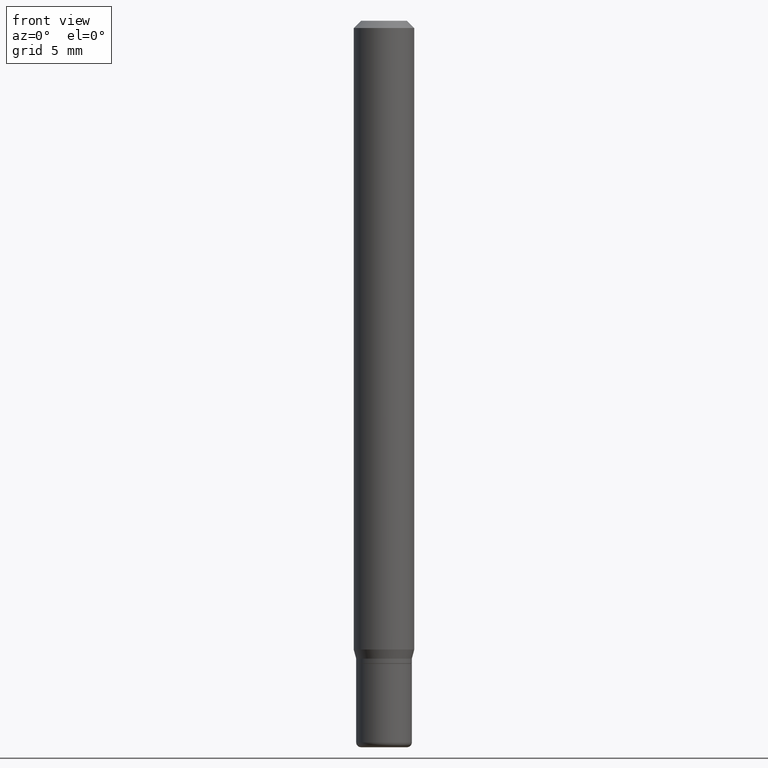
[diagram: clean part render]
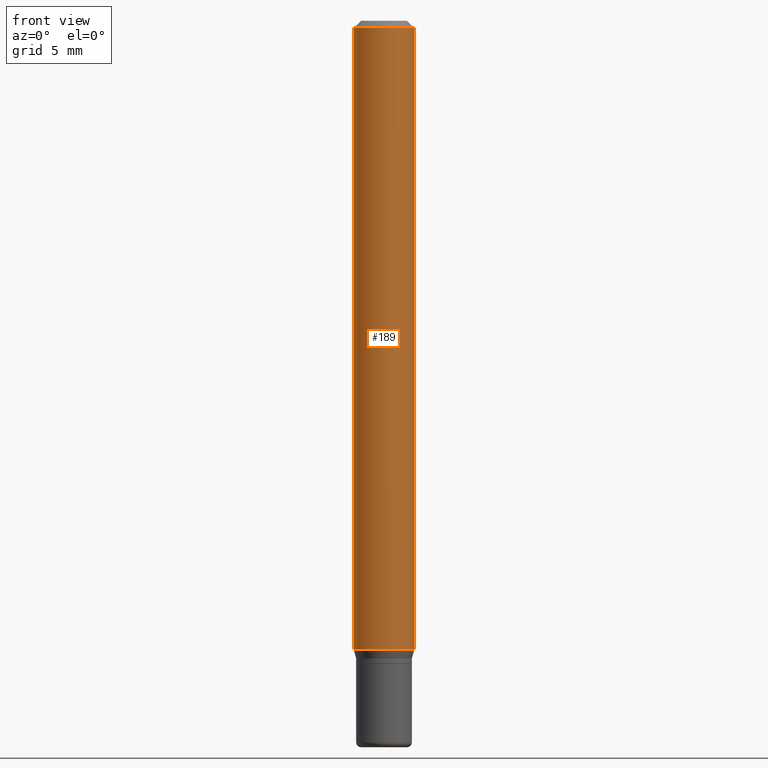
[diagram: same view with one face highlighted and labeled with its STEP entity id]
A machine part, front view. The second image highlights one B-rep face of the part: STEP entity #189.
In plain terms, the highlighted cylindrical surface (edge-blend (fillet) strip) has radius 1.5875 mm, axis along (-0, 0, 1).
Its self-contained STEP definition (entity closure, byte-faithful):
#25 = DIRECTION ( 'NONE',  ( -2.445468806185136597E-29, 3.491481338843145583E-15, 1.000000000000000000 ) ) ;
#38 = CARTESIAN_POINT ( 'NONE',  ( 0.06250000000000000000, -4.888073874380378612E-16, -0.01499999999999970281 ) ) ;
#45 = EDGE_CURVE ( 'NONE', #240, #462, #179, .T. ) ;
#68 = CIRCLE ( 'NONE', #202, 0.06250000000000000000 ) ;
#81 = EDGE_CURVE ( 'NONE', #240, #190, #310, .T. ) ;
#92 = DIRECTION ( 'NONE',  ( 1.000000000000000000, -6.982962677686262766E-15, 0.000000000000000000 ) ) ;
#99 = CARTESIAN_POINT ( 'NONE',  ( 3.175049348580786172E-29, -4.533128994505216724E-15, -1.298339745962155733 ) ) ;
#110 = VECTOR ( 'NONE', #146, 39.37007874015748143 ) ;
#113 = ORIENTED_EDGE ( 'NONE', *, *, #122, .T. ) ;
#122 = EDGE_CURVE ( 'NONE', #190, #497, #420, .T. ) ;
#140 = CARTESIAN_POINT ( 'NONE',  ( 0.000000000000000000, 0.000000000000000000, 0.000000000000000000 ) ) ;
#146 = DIRECTION ( 'NONE',  ( -2.445468806185136877E-29, 3.491481338843145188E-15, 1.000000000000000000 ) ) ;
#151 = VECTOR ( 'NONE', #170, 39.37007874015748143 ) ;
#157 = ORIENTED_EDGE ( 'NONE', *, *, #81, .T. ) ;
#170 = DIRECTION ( 'NONE',  ( -2.445468806185136877E-29, 3.491481338843145188E-15, 1.000000000000000000 ) ) ;
#179 = LINE ( 'NONE', #188, #110 ) ;
#180 = FACE_OUTER_BOUND ( 'NONE', #507, .T. ) ;
#182 = DIRECTION ( 'NONE',  ( -2.445468806185136597E-29, 3.491481338843145583E-15, 1.000000000000000000 ) ) ;
#188 = CARTESIAN_POINT ( 'NONE',  ( -0.06250000000000000000, 4.440892098500626162E-16, -3.074334431409316114E-30 ) ) ;
#189 = ADVANCED_FACE ( 'NONE', ( #180 ), #382, .T. ) ;
#190 = VERTEX_POINT ( 'NONE', #331 ) ;
#201 = CARTESIAN_POINT ( 'NONE',  ( -0.06250000000000000000, -1.848661397443868694E-15, -0.01499999999999970281 ) ) ;
#202 = AXIS2_PLACEMENT_3D ( 'NONE', #283, #207, #400 ) ;
#207 = DIRECTION ( 'NONE',  ( -2.445468806185136597E-29, 3.491481338843145583E-15, 1.000000000000000000 ) ) ;
#211 = DIRECTION ( 'NONE',  ( 1.000000000000000000, -6.982962677686266711E-15, 4.876176775795935793E-29 ) ) ;
#220 = CARTESIAN_POINT ( 'NONE',  ( 0.06250000000000000000, -4.364351673553916694E-16, 3.047610484872459871E-30 ) ) ;
#229 = ORIENTED_EDGE ( 'NONE', *, *, #444, .F. ) ;
#236 = ORIENTED_EDGE ( 'NONE', *, *, #45, .F. ) ;
#240 = VERTEX_POINT ( 'NONE', #260 ) ;
#260 = CARTESIAN_POINT ( 'NONE',  ( -0.06250000000000000000, -4.089039784655154896E-15, -1.298339745962155733 ) ) ;
#283 = CARTESIAN_POINT ( 'NONE',  ( 3.668203209277632395E-31, -5.237222008264614861E-17, -0.01499999999999970281 ) ) ;
#310 = CIRCLE ( 'NONE', #403, 0.06250000000000000000 ) ;
#331 = CARTESIAN_POINT ( 'NONE',  ( 0.06250000000000000000, -4.969564161860609182E-15, -1.298339745962155733 ) ) ;
#382 = CYLINDRICAL_SURFACE ( 'NONE', #486, 0.06250000000000000000 ) ;
#400 = DIRECTION ( 'NONE',  ( 1.000000000000000000, -6.982962677686266711E-15, 0.000000000000000000 ) ) ;
#403 = AXIS2_PLACEMENT_3D ( 'NONE', #99, #182, #92 ) ;
#420 = LINE ( 'NONE', #220, #151 ) ;
#444 = EDGE_CURVE ( 'NONE', #462, #497, #68, .T. ) ;
#462 = VERTEX_POINT ( 'NONE', #201 ) ;
#486 = AXIS2_PLACEMENT_3D ( 'NONE', #140, #25, #211 ) ;
#497 = VERTEX_POINT ( 'NONE', #38 ) ;
#507 = EDGE_LOOP ( 'NONE', ( #236, #157, #113, #229 ) ) ;